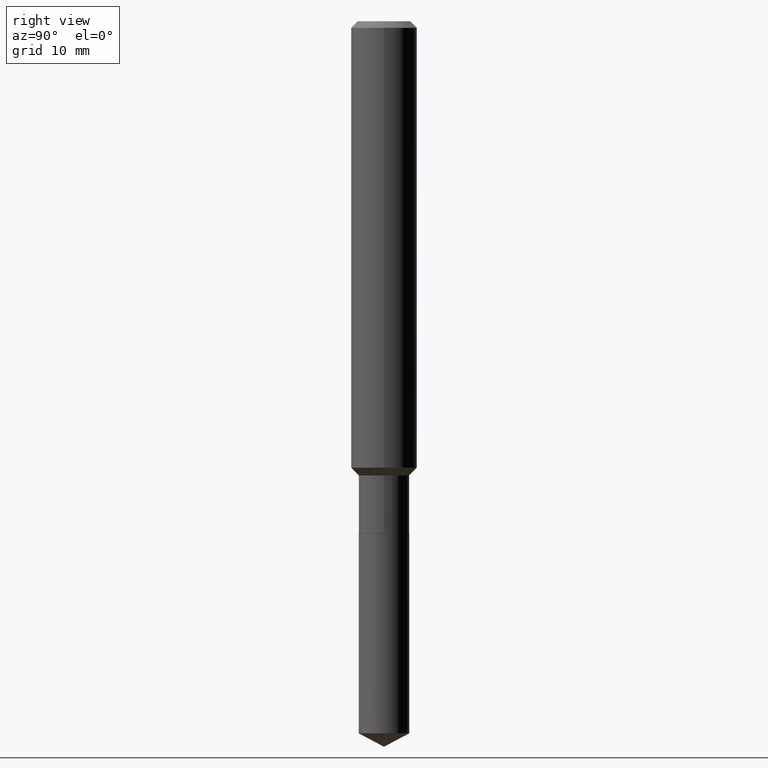
[diagram: clean part render]
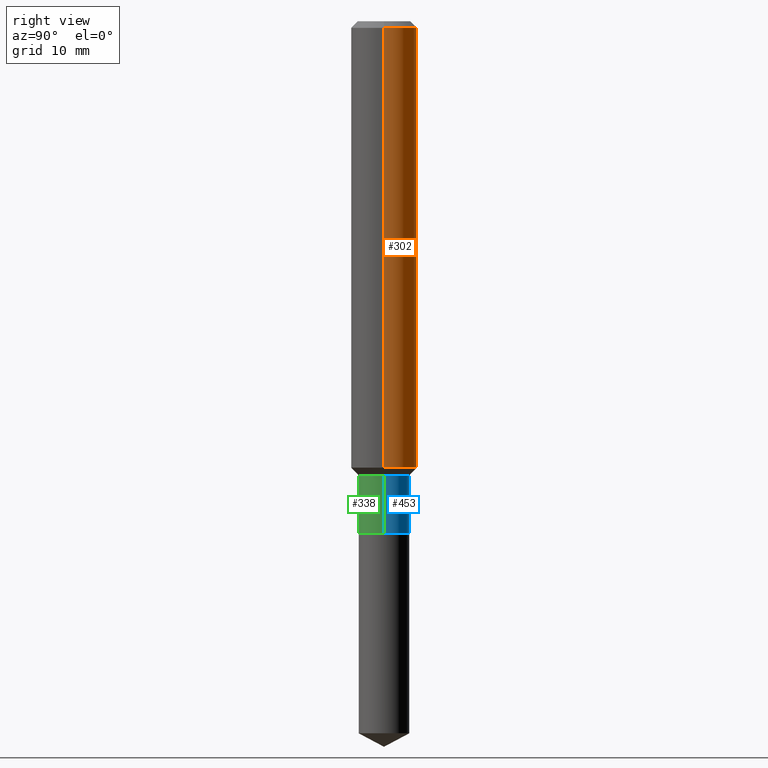
[diagram: same view with three faces highlighted in distinct colors, each labeled with its STEP entity id]
A machine part, right view with three faces highlighted in distinct colors.
Their STEP definitions:

[orange] entity #302 — the highlighted cylindrical surface (edge-blend (fillet) strip) has radius 2.9997 mm, axis along (-0, 0, 1).
#26 = VERTEX_POINT ( 'NONE', #80 ) ;
#29 = DIRECTION ( 'NONE',  ( -2.445468806185136597E-29, 3.491481338843145583E-15, 1.000000000000000000 ) ) ;
#33 = CARTESIAN_POINT ( 'NONE',  ( 0.1181000000000001077, -8.246878922347488542E-16, 5.758764772215005345E-30 ) ) ;
#40 = CIRCLE ( 'NONE', #227, 0.1181000000000001909 ) ;
#53 = ORIENTED_EDGE ( 'NONE', *, *, #143, .F. ) ;
#60 = VERTEX_POINT ( 'NONE', #238 ) ;
#73 = EDGE_CURVE ( 'NONE', #359, #60, #40, .T. ) ;
#80 = CARTESIAN_POINT ( 'NONE',  ( 0.1180999999999999966, -9.071566814582237199E-16, -0.02362000000000013741 ) ) ;
#100 = ORIENTED_EDGE ( 'NONE', *, *, #317, .F. ) ;
#132 = AXIS2_PLACEMENT_3D ( 'NONE', #323, #287, #433 ) ;
#137 = DIRECTION ( 'NONE',  ( -2.445468806185136877E-29, 3.491481338843145188E-15, 1.000000000000000000 ) ) ;
#139 = LINE ( 'NONE', #169, #289 ) ;
#143 = EDGE_CURVE ( 'NONE', #359, #26, #155, .T. ) ;
#155 = LINE ( 'NONE', #33, #363 ) ;
#159 = CARTESIAN_POINT ( 'NONE',  ( 3.909693253888486103E-29, -5.582005790475478148E-15, -1.598749999999999671 ) ) ;
#169 = CARTESIAN_POINT ( 'NONE',  ( -0.1181000000000001077, 8.391509709326790846E-16, -5.809262341591049389E-30 ) ) ;
#176 = CYLINDRICAL_SURFACE ( 'NONE', #132, 0.1181000000000001077 ) ;
#196 = DIRECTION ( 'NONE',  ( -2.445468806185136877E-29, 3.491481338843145188E-15, 1.000000000000000000 ) ) ;
#202 = DIRECTION ( 'NONE',  ( 1.000000000000000000, -6.982962677686269077E-15, 0.000000000000000000 ) ) ;
#213 = FACE_OUTER_BOUND ( 'NONE', #296, .T. ) ;
#220 = ORIENTED_EDGE ( 'NONE', *, *, #73, .T. ) ;
#227 = AXIS2_PLACEMENT_3D ( 'NONE', #159, #419, #202 ) ;
#238 = CARTESIAN_POINT ( 'NONE',  ( -0.1181000000000001909, -4.742854819542799162E-15, -1.598749999999999671 ) ) ;
#256 = CARTESIAN_POINT ( 'NONE',  ( 0.1181000000000001909, -6.406693682710227199E-15, -1.598749999999999671 ) ) ;
#283 = EDGE_CURVE ( 'NONE', #60, #474, #139, .T. ) ;
#287 = DIRECTION ( 'NONE',  ( -2.445468806185136597E-29, 3.491481338843145583E-15, 1.000000000000000000 ) ) ;
#289 = VECTOR ( 'NONE', #137, 39.37007874015748143 ) ;
#296 = EDGE_LOOP ( 'NONE', ( #220, #330, #100, #53 ) ) ;
#302 = ADVANCED_FACE ( 'NONE', ( #213 ), #176, .T. ) ;
#307 = CIRCLE ( 'NONE', #366, 0.1180999999999999966 ) ;
#317 = EDGE_CURVE ( 'NONE', #26, #474, #307, .T. ) ;
#323 = CARTESIAN_POINT ( 'NONE',  ( 0.000000000000000000, 0.000000000000000000, 0.000000000000000000 ) ) ;
#330 = ORIENTED_EDGE ( 'NONE', *, *, #283, .T. ) ;
#340 = CARTESIAN_POINT ( 'NONE',  ( -0.1180999999999999966, -1.993086318916797028E-15, -0.02362000000000013741 ) ) ;
#359 = VERTEX_POINT ( 'NONE', #256 ) ;
#362 = CARTESIAN_POINT ( 'NONE',  ( 5.776197320209326656E-31, -8.246878922347558061E-17, -0.02362000000000013741 ) ) ;
#363 = VECTOR ( 'NONE', #196, 39.37007874015748143 ) ;
#366 = AXIS2_PLACEMENT_3D ( 'NONE', #362, #29, #442 ) ;
#419 = DIRECTION ( 'NONE',  ( -2.445468806185136597E-29, 3.491481338843145583E-15, 1.000000000000000000 ) ) ;
#433 = DIRECTION ( 'NONE',  ( 1.000000000000000000, -6.982962677686266711E-15, 4.876176775795935793E-29 ) ) ;
#442 = DIRECTION ( 'NONE',  ( 1.000000000000000000, -6.982962677686266711E-15, 0.000000000000000000 ) ) ;
#474 = VERTEX_POINT ( 'NONE', #340 ) ;

[blue] entity #453 — the highlighted cylindrical surface (edge-blend (fillet) strip) has radius 2.3 mm, axis along (-0, 0, 1).
#10 = VECTOR ( 'NONE', #460, 39.37007874015748143 ) ;
#15 = CARTESIAN_POINT ( 'NONE',  ( -0.09055000000000000548, 6.433964472307707573E-16, -4.454095724225817219E-30 ) ) ;
#20 = CARTESIAN_POINT ( 'NONE',  ( -0.09054999999999999161, -5.397564565235639118E-15, -1.626299999999999857 ) ) ;
#31 = ORIENTED_EDGE ( 'NONE', *, *, #101, .T. ) ;
#32 = ORIENTED_EDGE ( 'NONE', *, *, #485, .F. ) ;
#39 = DIRECTION ( 'NONE',  ( 1.000000000000000000, -6.982962677686266711E-15, 0.000000000000000000 ) ) ;
#41 = AXIS2_PLACEMENT_3D ( 'NONE', #379, #226, #186 ) ;
#42 = CARTESIAN_POINT ( 'NONE',  ( -0.09055000000000000548, -5.397564565235639118E-15, -1.834100000000000064 ) ) ;
#85 = VERTEX_POINT ( 'NONE', #346 ) ;
#89 = LINE ( 'NONE', #15, #10 ) ;
#101 = EDGE_CURVE ( 'NONE', #85, #138, #348, .T. ) ;
#114 = DIRECTION ( 'NONE',  ( 1.000000000000000000, -6.982962677686266711E-15, 4.876176775795936353E-29 ) ) ;
#138 = VERTEX_POINT ( 'NONE', #42 ) ;
#158 = CYLINDRICAL_SURFACE ( 'NONE', #392, 0.09055000000000000548 ) ;
#170 = VERTEX_POINT ( 'NONE', #322 ) ;
#178 = EDGE_LOOP ( 'NONE', ( #31, #482, #32, #479 ) ) ;
#186 = DIRECTION ( 'NONE',  ( 1.000000000000000000, -6.982962677686267499E-15, 0.000000000000000000 ) ) ;
#192 = FACE_OUTER_BOUND ( 'NONE', #178, .T. ) ;
#198 = EDGE_CURVE ( 'NONE', #138, #337, #89, .T. ) ;
#199 = DIRECTION ( 'NONE',  ( -2.445468806185136597E-29, 3.491481338843145583E-15, 1.000000000000000000 ) ) ;
#206 = CIRCLE ( 'NONE', #41, 0.09054999999999999161 ) ;
#226 = DIRECTION ( 'NONE',  ( -2.445468806185136597E-29, 3.491481338843145583E-15, 1.000000000000000000 ) ) ;
#231 = DIRECTION ( 'NONE',  ( -2.445468806185136877E-29, 3.491481338843145188E-15, 1.000000000000000000 ) ) ;
#232 = CARTESIAN_POINT ( 'NONE',  ( 0.000000000000000000, 0.000000000000000000, 0.000000000000000000 ) ) ;
#234 = CARTESIAN_POINT ( 'NONE',  ( 0.09055000000000000548, -6.323072704644914696E-16, 4.415378070483220808E-30 ) ) ;
#322 = CARTESIAN_POINT ( 'NONE',  ( 0.09054999999999999161, -6.310503371825098014E-15, -1.626299999999999857 ) ) ;
#325 = AXIS2_PLACEMENT_3D ( 'NONE', #423, #388, #39 ) ;
#337 = VERTEX_POINT ( 'NONE', #20 ) ;
#346 = CARTESIAN_POINT ( 'NONE',  ( 0.09055000000000000548, -7.036033194036704874E-15, -1.834100000000000064 ) ) ;
#348 = CIRCLE ( 'NONE', #325, 0.09055000000000000548 ) ;
#365 = VECTOR ( 'NONE', #231, 39.37007874015748143 ) ;
#379 = CARTESIAN_POINT ( 'NONE',  ( 3.977065919498887245E-29, -5.678196101360606544E-15, -1.626299999999999857 ) ) ;
#388 = DIRECTION ( 'NONE',  ( -2.445468806185136597E-29, 3.491481338843145583E-15, 1.000000000000000000 ) ) ;
#392 = AXIS2_PLACEMENT_3D ( 'NONE', #232, #199, #114 ) ;
#418 = LINE ( 'NONE', #234, #365 ) ;
#423 = CARTESIAN_POINT ( 'NONE',  ( 4.485234337424158680E-29, -6.403725923572213404E-15, -1.834100000000000064 ) ) ;
#453 = ADVANCED_FACE ( 'NONE', ( #192 ), #158, .T. ) ;
#460 = DIRECTION ( 'NONE',  ( -2.445468806185136877E-29, 3.491481338843145188E-15, 1.000000000000000000 ) ) ;
#472 = EDGE_CURVE ( 'NONE', #85, #170, #418, .T. ) ;
#479 = ORIENTED_EDGE ( 'NONE', *, *, #472, .F. ) ;
#482 = ORIENTED_EDGE ( 'NONE', *, *, #198, .T. ) ;
#485 = EDGE_CURVE ( 'NONE', #170, #337, #206, .T. ) ;

[green] entity #338 — the highlighted cylindrical surface (edge-blend (fillet) strip) has radius 2.3 mm, axis along (-0, 0, 1).
#1 = DIRECTION ( 'NONE',  ( -2.445468806185136597E-29, 3.491481338843145583E-15, 1.000000000000000000 ) ) ;
#5 = CIRCLE ( 'NONE', #415, 0.09055000000000000548 ) ;
#10 = VECTOR ( 'NONE', #460, 39.37007874015748143 ) ;
#15 = CARTESIAN_POINT ( 'NONE',  ( -0.09055000000000000548, 6.433964472307707573E-16, -4.454095724225817219E-30 ) ) ;
#20 = CARTESIAN_POINT ( 'NONE',  ( -0.09054999999999999161, -5.397564565235639118E-15, -1.626299999999999857 ) ) ;
#42 = CARTESIAN_POINT ( 'NONE',  ( -0.09055000000000000548, -5.397564565235639118E-15, -1.834100000000000064 ) ) ;
#51 = ORIENTED_EDGE ( 'NONE', *, *, #198, .F. ) ;
#72 = ORIENTED_EDGE ( 'NONE', *, *, #472, .T. ) ;
#85 = VERTEX_POINT ( 'NONE', #346 ) ;
#89 = LINE ( 'NONE', #15, #10 ) ;
#99 = CARTESIAN_POINT ( 'NONE',  ( 0.000000000000000000, 0.000000000000000000, 0.000000000000000000 ) ) ;
#103 = DIRECTION ( 'NONE',  ( -2.445468806185136597E-29, 3.491481338843145583E-15, 1.000000000000000000 ) ) ;
#138 = VERTEX_POINT ( 'NONE', #42 ) ;
#153 = ORIENTED_EDGE ( 'NONE', *, *, #205, .F. ) ;
#161 = DIRECTION ( 'NONE',  ( 1.000000000000000000, -6.982962677686266711E-15, 0.000000000000000000 ) ) ;
#170 = VERTEX_POINT ( 'NONE', #322 ) ;
#198 = EDGE_CURVE ( 'NONE', #138, #337, #89, .T. ) ;
#205 = EDGE_CURVE ( 'NONE', #337, #170, #356, .T. ) ;
#211 = CARTESIAN_POINT ( 'NONE',  ( 3.977065919498887245E-29, -5.678196101360606544E-15, -1.626299999999999857 ) ) ;
#231 = DIRECTION ( 'NONE',  ( -2.445468806185136877E-29, 3.491481338843145188E-15, 1.000000000000000000 ) ) ;
#234 = CARTESIAN_POINT ( 'NONE',  ( 0.09055000000000000548, -6.323072704644914696E-16, 4.415378070483220808E-30 ) ) ;
#259 = DIRECTION ( 'NONE',  ( 1.000000000000000000, -6.982962677686266711E-15, 4.876176775795936353E-29 ) ) ;
#263 = AXIS2_PLACEMENT_3D ( 'NONE', #99, #103, #259 ) ;
#266 = ORIENTED_EDGE ( 'NONE', *, *, #467, .T. ) ;
#273 = AXIS2_PLACEMENT_3D ( 'NONE', #211, #465, #291 ) ;
#291 = DIRECTION ( 'NONE',  ( 1.000000000000000000, -6.982962677686267499E-15, 0.000000000000000000 ) ) ;
#322 = CARTESIAN_POINT ( 'NONE',  ( 0.09054999999999999161, -6.310503371825098014E-15, -1.626299999999999857 ) ) ;
#337 = VERTEX_POINT ( 'NONE', #20 ) ;
#338 = ADVANCED_FACE ( 'NONE', ( #438 ), #374, .T. ) ;
#345 = CARTESIAN_POINT ( 'NONE',  ( 4.485234337424158680E-29, -6.403725923572213404E-15, -1.834100000000000064 ) ) ;
#346 = CARTESIAN_POINT ( 'NONE',  ( 0.09055000000000000548, -7.036033194036704874E-15, -1.834100000000000064 ) ) ;
#356 = CIRCLE ( 'NONE', #273, 0.09054999999999999161 ) ;
#365 = VECTOR ( 'NONE', #231, 39.37007874015748143 ) ;
#374 = CYLINDRICAL_SURFACE ( 'NONE', #263, 0.09055000000000000548 ) ;
#415 = AXIS2_PLACEMENT_3D ( 'NONE', #345, #1, #161 ) ;
#417 = EDGE_LOOP ( 'NONE', ( #51, #266, #72, #153 ) ) ;
#418 = LINE ( 'NONE', #234, #365 ) ;
#438 = FACE_OUTER_BOUND ( 'NONE', #417, .T. ) ;
#460 = DIRECTION ( 'NONE',  ( -2.445468806185136877E-29, 3.491481338843145188E-15, 1.000000000000000000 ) ) ;
#465 = DIRECTION ( 'NONE',  ( -2.445468806185136597E-29, 3.491481338843145583E-15, 1.000000000000000000 ) ) ;
#467 = EDGE_CURVE ( 'NONE', #138, #85, #5, .T. ) ;
#472 = EDGE_CURVE ( 'NONE', #85, #170, #418, .T. ) ;